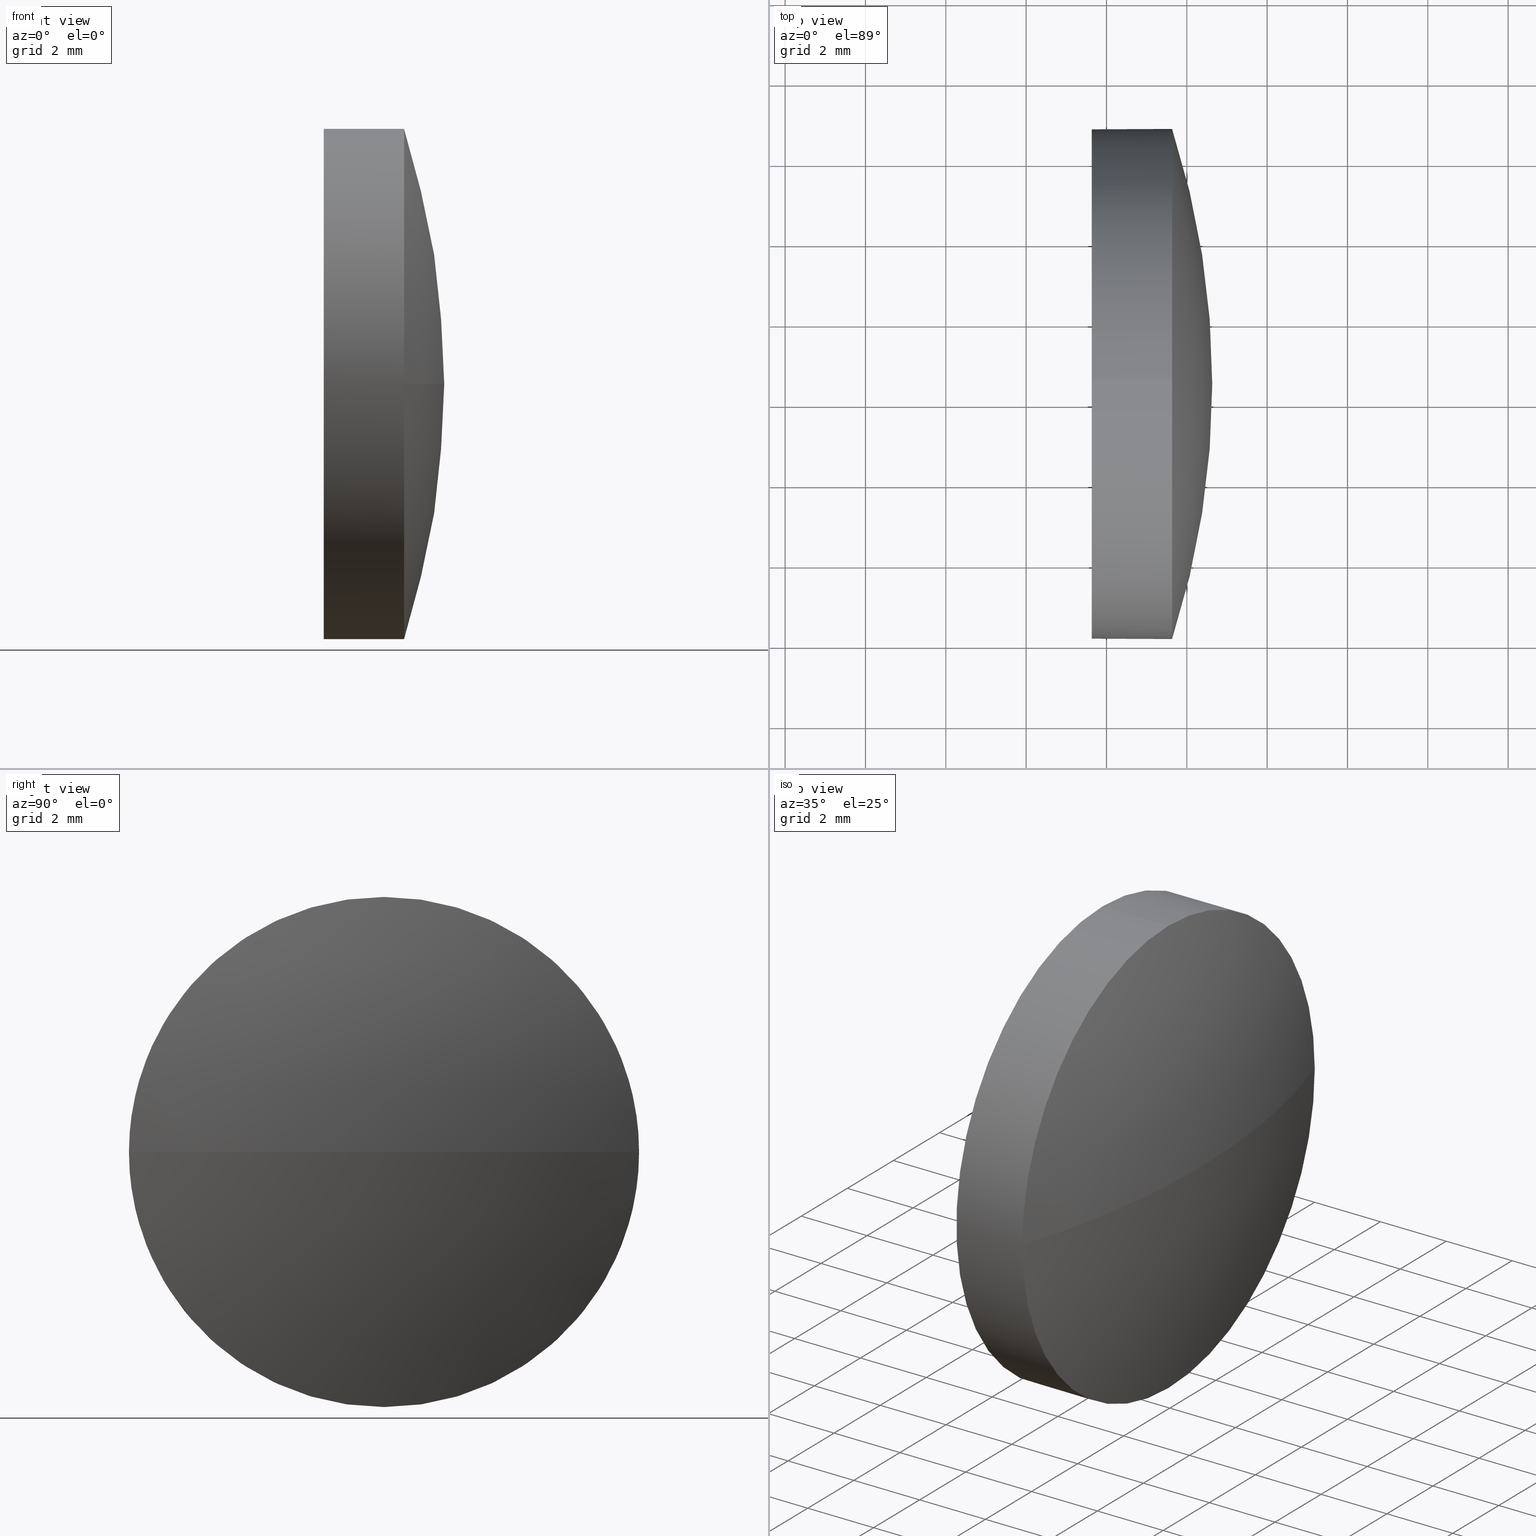
[diagram: canonical four-view strip — front | top / right | iso, engineering-drawing reading convention]
A machine part, canonical four-view strip (front | top / right | iso — engineering-drawing reading convention). The complete STEP part file that produces these views, byte-faithful:
ISO-10303-21;
HEADER;
FILE_DESCRIPTION (( 'STEP AP214' ),
    '1' );
FILE_NAME ('100476.STEP',
    '2019-06-11T06:21:43',
    ( '' ),
    ( '' ),
    'SwSTEP 2.0',
    'SolidWorks 2016',
    '' );
FILE_SCHEMA (( 'AUTOMOTIVE_DESIGN' ));
ENDSEC;

DATA;
#1 = CARTESIAN_POINT ( 'NONE',  ( 233.6334021862494400, 130.4671098528243900, 0.0000000000000000000 ) ) ;
#2 = MANIFOLD_SOLID_BREP ( '��ת1', #51 ) ;
#3 = DIRECTION ( 'NONE',  ( -1.000000000000000000, -0.0000000000000000000, -0.0000000000000000000 ) ) ;
#4 = DIRECTION ( 'NONE',  ( 1.000000000000000000, 0.0000000000000000000, 0.0000000000000000000 ) ) ;
#5 = CYLINDRICAL_SURFACE ( 'NONE', #135, 6.349999999999994300 ) ;
#6 = DIRECTION ( 'NONE',  ( 0.0000000000000000000, 0.0000000000000000000, 1.000000000000000000 ) ) ;
#7 = ADVANCED_FACE ( 'NONE', ( #78 ), #27, .T. ) ;
#8 = PRODUCT_DEFINITION_FORMATION_WITH_SPECIFIED_SOURCE ( '�κ�', '', #136, .NOT_KNOWN. ) ;
#9 = VERTEX_POINT ( 'NONE', #152 ) ;
#10 = PRESENTATION_STYLE_ASSIGNMENT (( #32 ) ) ;
#11 = VERTEX_POINT ( 'NONE', #99 ) ;
#12 = EDGE_CURVE ( 'NONE', #9, #144, #55, .T. ) ;
#13 = AXIS2_PLACEMENT_3D ( 'NONE', #114, #155, #147 ) ;
#14 = FILL_AREA_STYLE_COLOUR ( '', #110 ) ;
#15 = DIRECTION ( 'NONE',  ( -1.000000000000000000, -0.0000000000000000000, -0.0000000000000000000 ) ) ;
#16 = EDGE_CURVE ( 'NONE', #9, #162, #170, .T. ) ;
#17 = SURFACE_SIDE_STYLE ('',( #83 ) ) ;
#18 = PRESENTATION_LAYER_ASSIGNMENT (  '', '', ( #24 ) ) ;
#19 = ORIENTED_EDGE ( 'NONE', *, *, #12, .T. ) ;
#20 = ADVANCED_FACE ( 'NONE', ( #123 ), #168, .F. ) ;
#21 = CIRCLE ( 'NONE', #79, 6.349999999999994300 ) ;
#22 = ORIENTED_EDGE ( 'NONE', *, *, #183, .T. ) ;
#23 = STYLED_ITEM ( 'NONE', ( #166 ), #2 ) ;
#24 = STYLED_ITEM ( 'NONE', ( #10 ), #33 ) ;
#25 = EDGE_LOOP ( 'NONE', ( #141, #36, #112, #94, #28 ) ) ;
#26 = DIRECTION ( 'NONE',  ( 1.000000000000000000, 0.0000000000000000000, 0.0000000000000000000 ) ) ;
#27 = CYLINDRICAL_SURFACE ( 'NONE', #42, 6.349999999999994300 ) ;
#28 = ORIENTED_EDGE ( 'NONE', *, *, #146, .T. ) ;
#29 = DIRECTION ( 'NONE',  ( 0.0000000000000000000, 0.0000000000000000000, 1.000000000000000000 ) ) ;
#30 = DIRECTION ( 'NONE',  ( 0.0000000000000000000, 0.0000000000000000000, 1.000000000000000000 ) ) ;
#31 = ORIENTED_EDGE ( 'NONE', *, *, #16, .T. ) ;
#32 = SURFACE_STYLE_USAGE ( .BOTH. , #17 ) ;
#33 = ADVANCED_BREP_SHAPE_REPRESENTATION ( '100476', ( #2, #178 ), #128 ) ;
#34 = PRESENTATION_LAYER_ASSIGNMENT (  '', '', ( #23 ) ) ;
#35 = LINE ( 'NONE', #174, #113 ) ;
#36 = ORIENTED_EDGE ( 'NONE', *, *, #65, .T. ) ;
#37 = ORIENTED_EDGE ( 'NONE', *, *, #149, .F. ) ;
#38 = UNCERTAINTY_MEASURE_WITH_UNIT (LENGTH_MEASURE( 1.000000000000000100E-005 ), #169, 'distance_accuracy_value', 'NONE');
#39 = EDGE_CURVE ( 'NONE', #106, #11, #64, .T. ) ;
#40 = CARTESIAN_POINT ( 'NONE',  ( 213.9721521862494500, 130.4671098528243900, 0.0000000000000000000 ) ) ;
#41 =( NAMED_UNIT ( * ) SI_UNIT ( $, .STERADIAN. ) SOLID_ANGLE_UNIT ( ) );
#42 = AXIS2_PLACEMENT_3D ( 'NONE', #54, #87, #101 ) ;
#43 = CARTESIAN_POINT ( 'NONE',  ( 231.6334021862494400, 130.4671098528243900, 6.349999999999994300 ) ) ;
#44 = CARTESIAN_POINT ( 'NONE',  ( 231.6334021862494400, 130.4671098528243900, 0.0000000000000000000 ) ) ;
#45 = CARTESIAN_POINT ( 'NONE',  ( 231.6334021862494400, 130.4671098528243900, 0.0000000000000000000 ) ) ;
#46 = EDGE_LOOP ( 'NONE', ( #88, #85 ) ) ;
#47 = CARTESIAN_POINT ( 'NONE',  ( 233.6334021862494400, 130.4671098528243900, 0.0000000000000000000 ) ) ;
#48 = VERTEX_POINT ( 'NONE', #104 ) ;
#49 =( LENGTH_UNIT ( ) NAMED_UNIT ( * ) SI_UNIT ( .MILLI., .METRE. ) );
#50 = VECTOR ( 'NONE', #68, 1000.000000000000000 ) ;
#51 = CLOSED_SHELL ( 'NONE', ( #7, #164, #182, #95, #20 ) ) ;
#52 = AXIS2_PLACEMENT_3D ( 'NONE', #40, #171, #26 ) ;
#53 = DIRECTION ( 'NONE',  ( 0.0000000000000000000, 0.0000000000000000000, -1.000000000000000000 ) ) ;
#54 = CARTESIAN_POINT ( 'NONE',  ( 229.3728710403949800, 130.4671098528243900, 0.0000000000000000000 ) ) ;
#55 = CIRCLE ( 'NONE', #52, 20.66124999999999200 ) ;
#56 = DIRECTION ( 'NONE',  ( -1.000000000000000000, -0.0000000000000000000, -0.0000000000000000000 ) ) ;
#57 = DIRECTION ( 'NONE',  ( 0.0000000000000000000, 0.0000000000000000000, 1.000000000000000000 ) ) ;
#58 = SURFACE_STYLE_FILL_AREA ( #69 ) ;
#59 = DIRECTION ( 'NONE',  ( -1.000000000000000000, -0.0000000000000000000, -0.0000000000000000000 ) ) ;
#60 = CARTESIAN_POINT ( 'NONE',  ( 0.0000000000000000000, 0.0000000000000000000, 0.0000000000000000000 ) ) ;
#61 = ORIENTED_EDGE ( 'NONE', *, *, #146, .F. ) ;
#62 = AXIS2_PLACEMENT_3D ( 'NONE', #45, #59, #29 ) ;
#63 = APPLICATION_PROTOCOL_DEFINITION ( 'draft international standard', 'automotive_design', 1998, #122 ) ;
#64 = CIRCLE ( 'NONE', #62, 6.349999999999994300 ) ;
#65 = EDGE_CURVE ( 'NONE', #186, #11, #185, .T. ) ;
#66 = EDGE_LOOP ( 'NONE', ( #96, #19, #61, #81 ) ) ;
#67 = DIRECTION ( 'NONE',  ( 0.0000000000000000000, 1.224646799147353200E-016, -1.000000000000000000 ) ) ;
#68 = DIRECTION ( 'NONE',  ( -1.000000000000000000, -0.0000000000000000000, -0.0000000000000000000 ) ) ;
#69 = FILL_AREA_STYLE ('',( #97 ) ) ;
#70 = SURFACE_SIDE_STYLE ('',( #58 ) ) ;
#71 = AXIS2_PLACEMENT_3D ( 'NONE', #154, #138, #53 ) ;
#72 = CARTESIAN_POINT ( 'NONE',  ( 229.3728710403949800, 130.4671098528243900, 0.0000000000000000000 ) ) ;
#73 = ORIENTED_EDGE ( 'NONE', *, *, #115, .T. ) ;
#74 = CARTESIAN_POINT ( 'NONE',  ( 233.6334021862494400, 136.8171098528243900, 0.0000000000000000000 ) ) ;
#75 = AXIS2_PLACEMENT_3D ( 'NONE', #105, #173, #175 ) ;
#76 = CARTESIAN_POINT ( 'NONE',  ( 233.6334021862494400, 130.4671098528243900, 0.0000000000000000000 ) ) ;
#77 = UNCERTAINTY_MEASURE_WITH_UNIT (LENGTH_MEASURE( 1.000000000000000100E-005 ), #49, 'distance_accuracy_value', 'NONE');
#78 = FACE_OUTER_BOUND ( 'NONE', #25, .T. ) ;
#79 = AXIS2_PLACEMENT_3D ( 'NONE', #76, #89, #90 ) ;
#80 = CARTESIAN_POINT ( 'NONE',  ( 233.6334021862494400, 130.4671098528243900, -6.349999999999994300 ) ) ;
#81 = ORIENTED_EDGE ( 'NONE', *, *, #183, .F. ) ;
#82 = PRODUCT_DEFINITION ( 'δ֪', '', #8, #156 ) ;
#83 = SURFACE_STYLE_FILL_AREA ( #107 ) ;
#84 = CIRCLE ( 'NONE', #118, 6.349999999999994300 ) ;
#85 = ORIENTED_EDGE ( 'NONE', *, *, #149, .T. ) ;
#86 = DIRECTION ( 'NONE',  ( 0.0000000000000000000, 1.000000000000000000, 1.224646799147353200E-016 ) ) ;
#87 = DIRECTION ( 'NONE',  ( -1.000000000000000000, -0.0000000000000000000, -0.0000000000000000000 ) ) ;
#88 = ORIENTED_EDGE ( 'NONE', *, *, #39, .T. ) ;
#89 = DIRECTION ( 'NONE',  ( -1.000000000000000000, -0.0000000000000000000, -0.0000000000000000000 ) ) ;
#90 = DIRECTION ( 'NONE',  ( 0.0000000000000000000, 0.0000000000000000000, 1.000000000000000000 ) ) ;
#91 = EDGE_CURVE ( 'NONE', #144, #186, #93, .T. ) ;
#92 =( NAMED_UNIT ( * ) PLANE_ANGLE_UNIT ( ) SI_UNIT ( $, .RADIAN. ) );
#93 = CIRCLE ( 'NONE', #165, 6.349999999999994300 ) ;
#94 = ORIENTED_EDGE ( 'NONE', *, *, #102, .F. ) ;
#95 = ADVANCED_FACE ( 'NONE', ( #150 ), #5, .T. ) ;
#96 = ORIENTED_EDGE ( 'NONE', *, *, #16, .F. ) ;
#97 = FILL_AREA_STYLE_COLOUR ( '', #134 ) ;
#98 = MECHANICAL_DESIGN_GEOMETRIC_PRESENTATION_REPRESENTATION (  '', ( #24 ), #153 ) ;
#99 = CARTESIAN_POINT ( 'NONE',  ( 231.6334021862494400, 130.4671098528243900, -6.349999999999994300 ) ) ;
#100 = ORIENTED_EDGE ( 'NONE', *, *, #102, .T. ) ;
#101 = DIRECTION ( 'NONE',  ( 0.0000000000000000000, 0.0000000000000000000, 1.000000000000000000 ) ) ;
#102 = EDGE_CURVE ( 'NONE', #48, #106, #35, .T. ) ;
#103 = DIRECTION ( 'NONE',  ( -1.000000000000000000, -0.0000000000000000000, -0.0000000000000000000 ) ) ;
#104 = CARTESIAN_POINT ( 'NONE',  ( 233.6334021862494400, 130.4671098528243900, 6.349999999999994300 ) ) ;
#105 = CARTESIAN_POINT ( 'NONE',  ( 213.9721521862494500, 130.4671098528243900, 0.0000000000000000000 ) ) ;
#106 = VERTEX_POINT ( 'NONE', #43 ) ;
#107 = FILL_AREA_STYLE ('',( #14 ) ) ;
#108 = PRODUCT_DEFINITION_SHAPE ( 'NONE', 'NONE',  #82 ) ;
#109 = AXIS2_PLACEMENT_3D ( 'NONE', #44, #172, #30 ) ;
#110 = COLOUR_RGB ( '',1.000000000000000000, 1.000000000000000000, 1.000000000000000000 ) ;
#111 = MECHANICAL_DESIGN_GEOMETRIC_PRESENTATION_REPRESENTATION (  '', ( #23 ), #151 ) ;
#112 = ORIENTED_EDGE ( 'NONE', *, *, #39, .F. ) ;
#113 = VECTOR ( 'NONE', #130, 1000.000000000000000 ) ;
#114 = CARTESIAN_POINT ( 'NONE',  ( 213.9721521862494500, 130.4671098528243900, 0.0000000000000000000 ) ) ;
#115 = EDGE_CURVE ( 'NONE', #186, #162, #143, .T. ) ;
#116 =( LENGTH_UNIT ( ) NAMED_UNIT ( * ) SI_UNIT ( .MILLI., .METRE. ) );
#117 = SPHERICAL_SURFACE ( 'NONE', #75, 20.66124999999999200 ) ;
#118 = AXIS2_PLACEMENT_3D ( 'NONE', #47, #3, #159 ) ;
#119 = PRODUCT_RELATED_PRODUCT_CATEGORY ( 'part', '', ( #136 ) ) ;
#120 = UNCERTAINTY_MEASURE_WITH_UNIT (LENGTH_MEASURE( 1.000000000000000100E-005 ), #116, 'distance_accuracy_value', 'NONE');
#121 =( NAMED_UNIT ( * ) PLANE_ANGLE_UNIT ( ) SI_UNIT ( $, .RADIAN. ) );
#122 = APPLICATION_CONTEXT ( 'automotive_design' ) ;
#123 = FACE_OUTER_BOUND ( 'NONE', #46, .T. ) ;
#124 = ORIENTED_EDGE ( 'NONE', *, *, #65, .F. ) ;
#125 = CARTESIAN_POINT ( 'NONE',  ( 213.9721521862494500, 130.4671098528243900, 0.0000000000000000000 ) ) ;
#126 = SURFACE_STYLE_USAGE ( .BOTH. , #70 ) ;
#127 = AXIS2_PLACEMENT_3D ( 'NONE', #1, #56, #57 ) ;
#128 =( GEOMETRIC_REPRESENTATION_CONTEXT ( 3 ) GLOBAL_UNCERTAINTY_ASSIGNED_CONTEXT ( ( #120 ) ) GLOBAL_UNIT_ASSIGNED_CONTEXT ( ( #116, #92, #179 ) ) REPRESENTATION_CONTEXT ( 'NONE', 'WORKASPACE' ) );
#129 = CARTESIAN_POINT ( 'NONE',  ( 233.6334021862494400, 124.1171098528244000, -7.776507174585688200E-016 ) ) ;
#130 = DIRECTION ( 'NONE',  ( -1.000000000000000000, -0.0000000000000000000, -0.0000000000000000000 ) ) ;
#131 = SPHERICAL_SURFACE ( 'NONE', #13, 20.66124999999999200 ) ;
#132 = PRODUCT_CONTEXT ( 'NONE', #176, 'mechanical' ) ;
#133 = FACE_OUTER_BOUND ( 'NONE', #137, .T. ) ;
#134 = COLOUR_RGB ( '',1.000000000000000000, 1.000000000000000000, 1.000000000000000000 ) ;
#135 = AXIS2_PLACEMENT_3D ( 'NONE', #72, #15, #157 ) ;
#136 = PRODUCT ( '100476', '100476', '', ( #132 ) ) ;
#137 = EDGE_LOOP ( 'NONE', ( #180, #31, #177, #161 ) ) ;
#138 = DIRECTION ( 'NONE',  ( 1.000000000000000000, 0.0000000000000000000, 0.0000000000000000000 ) ) ;
#139 =( NAMED_UNIT ( * ) PLANE_ANGLE_UNIT ( ) SI_UNIT ( $, .RADIAN. ) );
#140 = SHAPE_DEFINITION_REPRESENTATION ( #108, #33 ) ;
#141 = ORIENTED_EDGE ( 'NONE', *, *, #91, .T. ) ;
#142 = DIRECTION ( 'NONE',  ( 0.0000000000000000000, 0.0000000000000000000, 1.000000000000000000 ) ) ;
#143 = CIRCLE ( 'NONE', #127, 6.349999999999994300 ) ;
#144 = VERTEX_POINT ( 'NONE', #74 ) ;
#145 = CARTESIAN_POINT ( 'NONE',  ( 233.6334021862494400, 130.4671098528243900, 0.0000000000000000000 ) ) ;
#146 = EDGE_CURVE ( 'NONE', #48, #144, #21, .T. ) ;
#147 = DIRECTION ( 'NONE',  ( 0.0000000000000000000, 1.000000000000000000, 0.0000000000000000000 ) ) ;
#148 = CIRCLE ( 'NONE', #109, 6.349999999999994300 ) ;
#149 = EDGE_CURVE ( 'NONE', #11, #106, #148, .T. ) ;
#150 = FACE_OUTER_BOUND ( 'NONE', #184, .T. ) ;
#151 =( GEOMETRIC_REPRESENTATION_CONTEXT ( 3 ) GLOBAL_UNCERTAINTY_ASSIGNED_CONTEXT ( ( #38 ) ) GLOBAL_UNIT_ASSIGNED_CONTEXT ( ( #169, #139, #41 ) ) REPRESENTATION_CONTEXT ( 'NONE', 'WORKASPACE' ) );
#152 = CARTESIAN_POINT ( 'NONE',  ( 234.6334021862494400, 130.4671098528243900, 0.0000000000000000000 ) ) ;
#153 =( GEOMETRIC_REPRESENTATION_CONTEXT ( 3 ) GLOBAL_UNCERTAINTY_ASSIGNED_CONTEXT ( ( #77 ) ) GLOBAL_UNIT_ASSIGNED_CONTEXT ( ( #49, #121, #181 ) ) REPRESENTATION_CONTEXT ( 'NONE', 'WORKASPACE' ) );
#154 = CARTESIAN_POINT ( 'NONE',  ( 231.6334021862494400, 130.4671098528243900, 0.0000000000000000000 ) ) ;
#155 = DIRECTION ( 'NONE',  ( -0.0000000000000000000, 0.0000000000000000000, -1.000000000000000000 ) ) ;
#156 = PRODUCT_DEFINITION_CONTEXT ( 'detailed design', #122, 'design' ) ;
#157 = DIRECTION ( 'NONE',  ( 0.0000000000000000000, 0.0000000000000000000, 1.000000000000000000 ) ) ;
#158 = FACE_OUTER_BOUND ( 'NONE', #66, .T. ) ;
#159 = DIRECTION ( 'NONE',  ( 0.0000000000000000000, 0.0000000000000000000, 1.000000000000000000 ) ) ;
#160 = APPLICATION_PROTOCOL_DEFINITION ( 'draft international standard', 'automotive_design', 1998, #176 ) ;
#161 = ORIENTED_EDGE ( 'NONE', *, *, #91, .F. ) ;
#162 = VERTEX_POINT ( 'NONE', #129 ) ;
#163 = AXIS2_PLACEMENT_3D ( 'NONE', #125, #67, #86 ) ;
#164 = ADVANCED_FACE ( 'NONE', ( #133 ), #131, .T. ) ;
#165 = AXIS2_PLACEMENT_3D ( 'NONE', #145, #103, #142 ) ;
#166 = PRESENTATION_STYLE_ASSIGNMENT (( #126 ) ) ;
#167 = CARTESIAN_POINT ( 'NONE',  ( 229.3728710403949800, 130.4671098528243900, -6.349999999999994300 ) ) ;
#168 = PLANE ( 'NONE',  #71 ) ;
#169 =( LENGTH_UNIT ( ) NAMED_UNIT ( * ) SI_UNIT ( .MILLI., .METRE. ) );
#170 = CIRCLE ( 'NONE', #163, 20.66124999999999200 ) ;
#171 = DIRECTION ( 'NONE',  ( -0.0000000000000000000, 0.0000000000000000000, 1.000000000000000000 ) ) ;
#172 = DIRECTION ( 'NONE',  ( -1.000000000000000000, -0.0000000000000000000, -0.0000000000000000000 ) ) ;
#173 = DIRECTION ( 'NONE',  ( -0.0000000000000000000, 0.0000000000000000000, -1.000000000000000000 ) ) ;
#174 = CARTESIAN_POINT ( 'NONE',  ( 229.3728710403949800, 130.4671098528243900, 6.349999999999994300 ) ) ;
#175 = DIRECTION ( 'NONE',  ( 0.0000000000000000000, 1.000000000000000000, 0.0000000000000000000 ) ) ;
#176 = APPLICATION_CONTEXT ( 'automotive_design' ) ;
#177 = ORIENTED_EDGE ( 'NONE', *, *, #115, .F. ) ;
#178 = AXIS2_PLACEMENT_3D ( 'NONE', #60, #6, #4 ) ;
#179 =( NAMED_UNIT ( * ) SI_UNIT ( $, .STERADIAN. ) SOLID_ANGLE_UNIT ( ) );
#180 = ORIENTED_EDGE ( 'NONE', *, *, #12, .F. ) ;
#181 =( NAMED_UNIT ( * ) SI_UNIT ( $, .STERADIAN. ) SOLID_ANGLE_UNIT ( ) );
#182 = ADVANCED_FACE ( 'NONE', ( #158 ), #117, .T. ) ;
#183 = EDGE_CURVE ( 'NONE', #162, #48, #84, .T. ) ;
#184 = EDGE_LOOP ( 'NONE', ( #124, #73, #22, #100, #37 ) ) ;
#185 = LINE ( 'NONE', #167, #50 ) ;
#186 = VERTEX_POINT ( 'NONE', #80 ) ;
ENDSEC;
END-ISO-10303-21;
